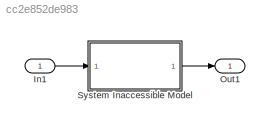
MODEL slx_cc2e852de983
KIND model
CONFIG AbsTol = auto
CONFIG EnableMultiTasking = off
CONFIG FixedStep = auto
CONFIG MaxStep = auto
CONFIG MinStep = auto
CONFIG RelTol = 1e-7
CONFIG SampleTimeConstraint = Unconstrained
CONFIG Solver = VariableStepAuto
CONFIG SolverName = VariableStepAuto
CONFIG StartTime = 0.0
CONFIG StopTime = 50000
BLOCK [Inport] In1
  IconDisplay = Port number
BLOCK [Outport] Out1
  IconDisplay = Port number
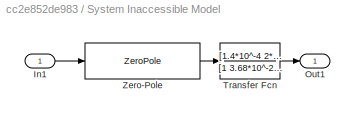
BLOCK [SubSystem] System Inaccessible Model
  Ports = [1, 1]
  RequestExecContextInheritance = off
BLOCK [Inport] System Inaccessible Model/In1
  IconDisplay = Port number
BLOCK [Outport] System Inaccessible Model/Out1
  IconDisplay = Port number
BLOCK [TransferFcn] System Inaccessible Model/Transfer Fcn
  Denominator = [1 3.68*10^-2 2.35752*10^-4 8.2*10^-8 5.0713*10^-12]
  Numerator = [1.4*10^-4 2*10^-7 7.56*10^-12]
BLOCK [ZeroPole] System Inaccessible Model/Zero-Pole
  Gain = [-1]
  Poles = [ -0.2353]
  Zeros = [0.2353]
LINE In1:1 -> System Inaccessible Model:1
LINE System Inaccessible Model/In1:1 -> System Inaccessible Model/Zero-Pole:1
LINE System Inaccessible Model/Transfer Fcn:1 -> System Inaccessible Model/Out1:1
LINE System Inaccessible Model/Zero-Pole:1 -> System Inaccessible Model/Transfer Fcn:1
LINE System Inaccessible Model:1 -> Out1:1
